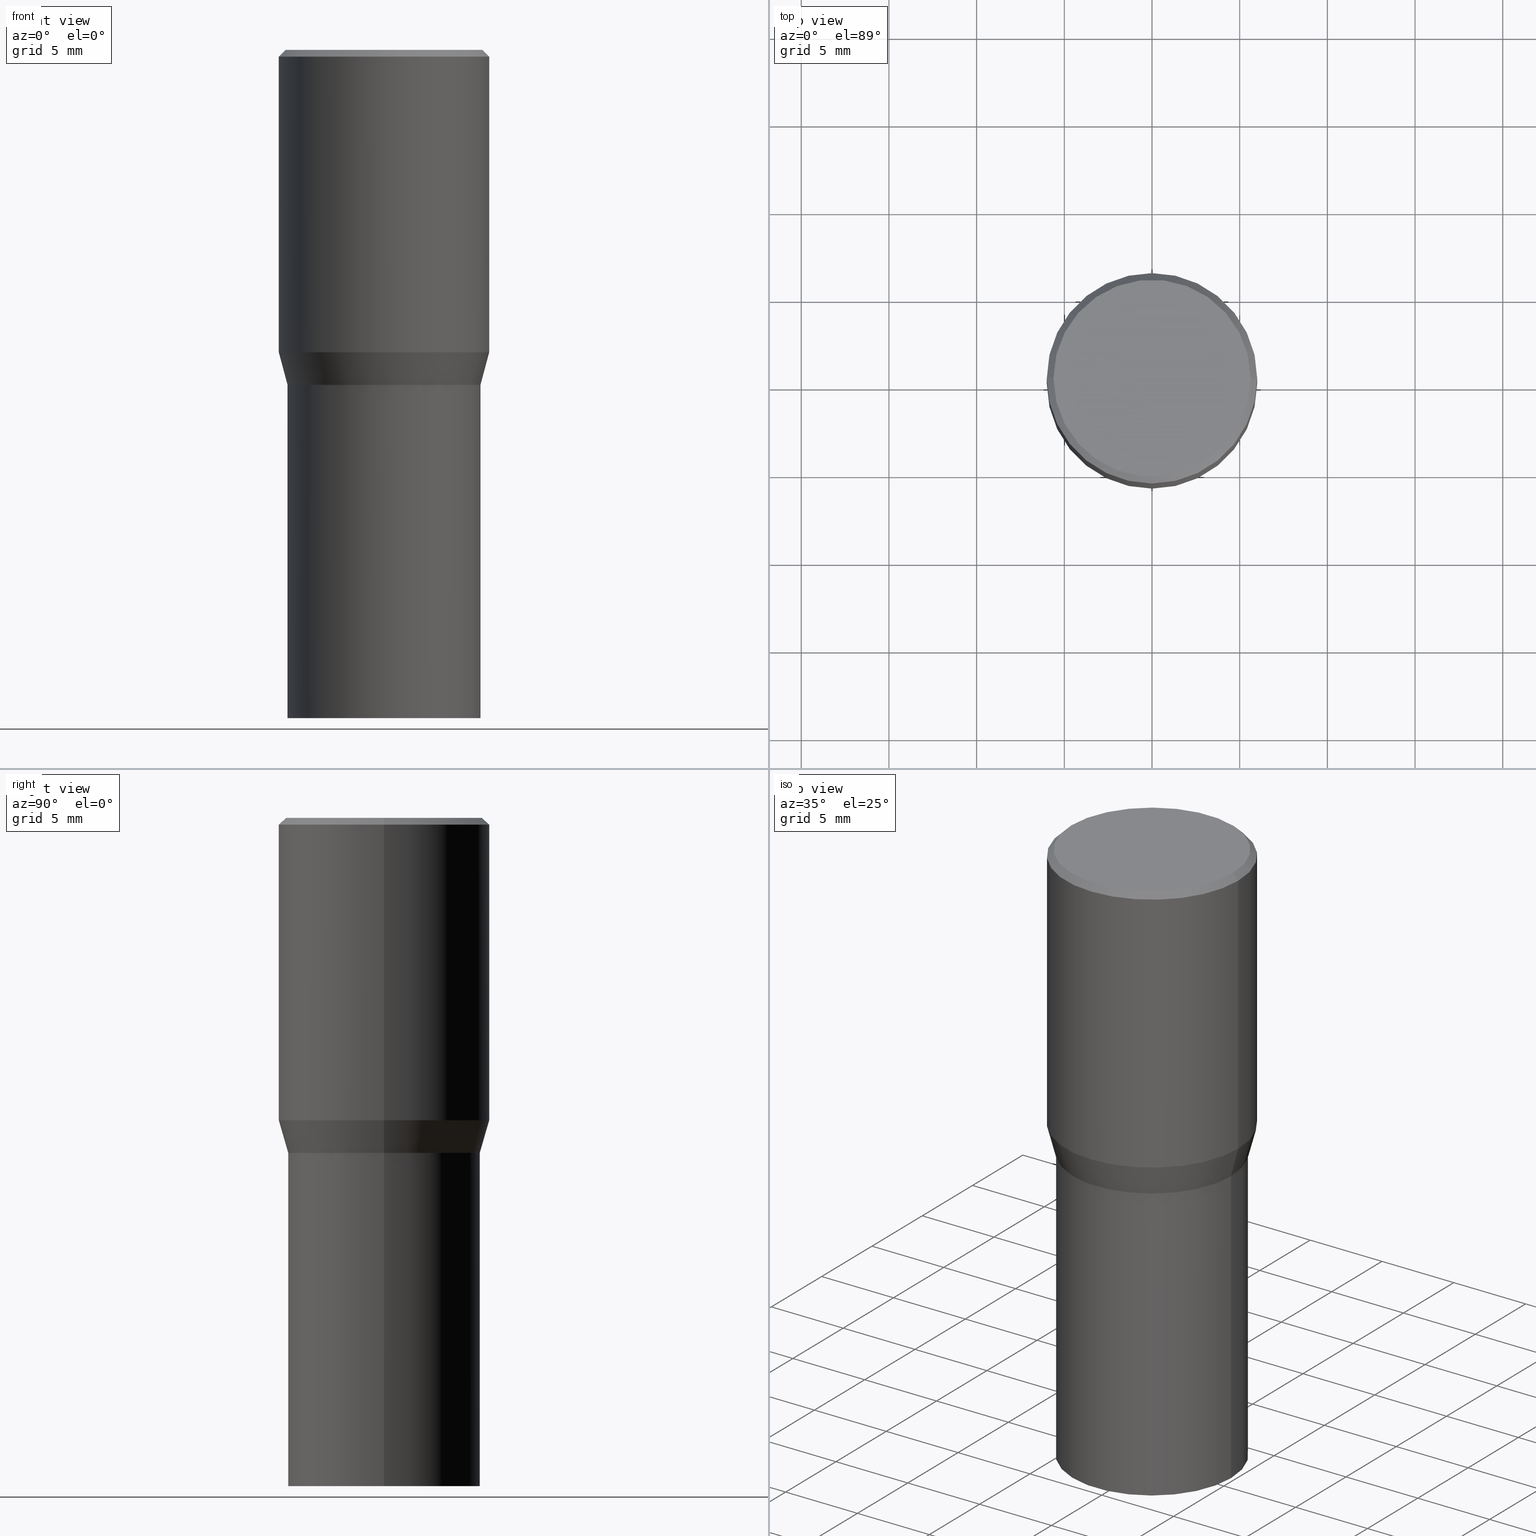
[diagram: canonical four-view strip — front | top / right | iso, engineering-drawing reading convention]
A machine part, canonical four-view strip (front | top / right | iso — engineering-drawing reading convention). The complete STEP part file that produces these views, byte-faithful:
ISO-10303-21;
HEADER;
FILE_DESCRIPTION (( 'STEP AP203' ),
    '1' );
FILE_NAME ('49171.STEP',
    '2024-03-12T20:01:16',
    ( '' ),
    ( '' ),
    'SwSTEP 2.0',
    'SolidWorks 2023',
    '' );
FILE_SCHEMA (( 'CONFIG_CONTROL_DESIGN' ));
ENDSEC;

DATA;
#1 = DIRECTION ( 'NONE',  ( 1.000000000000000000, -6.982962677686266711E-15, 0.000000000000000000 ) ) ;
#2 = DATE_AND_TIME ( #75, #427 ) ;
#3 = EDGE_CURVE ( 'NONE', #333, #403, #351, .T. ) ;
#4 = CARTESIAN_POINT ( 'NONE',  ( -0.2165500000000000203, -8.890793087369993447E-16, -0.7520000000000001128 ) ) ;
#5 = CARTESIAN_POINT ( 'NONE',  ( 0.000000000000000000, 0.000000000000000000, 0.000000000000000000 ) ) ;
#6 = DIRECTION ( 'NONE',  ( -2.445468806185136597E-29, 3.491481338843145583E-15, 1.000000000000000000 ) ) ;
#7 = CC_DESIGN_APPROVAL ( #282, ( #466 ) ) ;
#8 = DIRECTION ( 'NONE',  ( 2.445468806185136597E-29, -3.491481338843145583E-15, -1.000000000000000000 ) ) ;
#9 = DIRECTION ( 'NONE',  ( -1.000000000000000000, 6.982962677686266711E-15, 0.000000000000000000 ) ) ;
#10 = EDGE_LOOP ( 'NONE', ( #237, #407, #57, #299 ) ) ;
#11 = DIRECTION ( 'NONE',  ( 1.000000000000000000, -6.982962677686266711E-15, 4.876176775795935793E-29 ) ) ;
#12 = ORIENTED_EDGE ( 'NONE', *, *, #376, .T. ) ;
#13 = DIMENSIONAL_EXPONENTS ( 1.000000000000000000, 0.000000000000000000, 0.000000000000000000, 0.000000000000000000, 0.000000000000000000, 0.000000000000000000, 0.000000000000000000 ) ;
#14 = DESIGN_CONTEXT ( 'detailed design', #382, 'design' ) ;
#15 = PLANE ( 'NONE',  #60 ) ;
#16 = APPROVAL ( #61, 'UNSPECIFIED' ) ;
#17 = ORIENTED_EDGE ( 'NONE', *, *, #290, .F. ) ;
#18 = PLANE ( 'NONE',  #288 ) ;
#19 = EDGE_LOOP ( 'NONE', ( #90, #93, #414, #277 ) ) ;
#20 =( NAMED_UNIT ( * ) SI_UNIT ( $, .STERADIAN. ) SOLID_ANGLE_UNIT ( ) );
#21 = ORIENTED_EDGE ( 'NONE', *, *, #44, .T. ) ;
#22 = PLANE ( 'NONE',  #281 ) ;
#23 = VERTEX_POINT ( 'NONE', #409 ) ;
#24 = APPLICATION_PROTOCOL_DEFINITION ( 'international standard', 'config_control_design', 1994, #180 ) ;
#25 = VERTEX_POINT ( 'NONE', #410 ) ;
#26 = CALENDAR_DATE ( 2024, 12, 3 ) ;
#27 = ORIENTED_EDGE ( 'NONE', *, *, #223, .F. ) ;
#28 = AXIS2_PLACEMENT_3D ( 'NONE', #461, #104, #372 ) ;
#29 = LOCAL_TIME ( 16, 1, 16.00000000000000000, #307 ) ;
#30 = PERSON_AND_ORGANIZATION_ROLE ( 'design_supplier' ) ;
#31 = CARTESIAN_POINT ( 'NONE',  ( 1.659654580432621677E-29, -2.369546886817807077E-15, -0.6786652016312719748 ) ) ;
#32 = DIRECTION ( 'NONE',  ( -2.445468806185136877E-29, 3.491481338843145188E-15, 1.000000000000000000 ) ) ;
#33 = DIRECTION ( 'NONE',  ( -2.445468806185136597E-29, 3.491481338843145583E-15, 1.000000000000000000 ) ) ;
#34 = AXIS2_PLACEMENT_3D ( 'NONE', #353, #387, #313 ) ;
#35 = PRODUCT_DEFINITION ( 'UNKNOWN', '', #397, #14 ) ;
#36 = VECTOR ( 'NONE', #258, 39.37007874015748143 ) ;
#37 = CARTESIAN_POINT ( 'NONE',  ( 0.2361999999999999933, -1.649375784469496131E-15, 1.151752954443000088E-29 ) ) ;
#38 = DIRECTION ( 'NONE',  ( -2.445468806185136597E-29, 3.491481338843145583E-15, 1.000000000000000000 ) ) ;
#39 = APPROVAL_DATE_TIME ( #2, #282 ) ;
#40 = LINE ( 'NONE', #37, #412 ) ;
#41 = CONICAL_SURFACE ( 'NONE', #154, 0.2160500000000000198, 0.7853981633977554777 ) ;
#42 =( GEOMETRIC_REPRESENTATION_CONTEXT ( 3 ) GLOBAL_UNCERTAINTY_ASSIGNED_CONTEXT ( ( #354 ) ) GLOBAL_UNIT_ASSIGNED_CONTEXT ( ( #196, #266, #20 ) ) REPRESENTATION_CONTEXT ( 'NONE', 'WORKASPACE' ) );
#43 = CARTESIAN_POINT ( 'NONE',  ( 1.838992542251222532E-29, -2.625593966810045103E-15, -0.7519999999999998908 ) ) ;
#44 = EDGE_CURVE ( 'NONE', #233, #25, #309, .T. ) ;
#45 = FACE_OUTER_BOUND ( 'NONE', #230, .T. ) ;
#46 = EDGE_LOOP ( 'NONE', ( #396, #70 ) ) ;
#47 = DIRECTION ( 'NONE',  ( -2.445468806185136597E-29, 3.491481338843145583E-15, 1.000000000000000000 ) ) ;
#48 = EDGE_LOOP ( 'NONE', ( #161, #306, #121, #399 ) ) ;
#49 = CC_DESIGN_PERSON_AND_ORGANIZATION_ASSIGNMENT ( #137, #240, ( #466 ) ) ;
#50 = CARTESIAN_POINT ( 'NONE',  ( 1.838992542251222813E-29, -2.625593966810045497E-15, -0.7520000000000001128 ) ) ;
#51 = ORIENTED_EDGE ( 'NONE', *, *, #350, .F. ) ;
#52 = CARTESIAN_POINT ( 'NONE',  ( -0.2361999999999999933, 1.678301941865356591E-15, -1.161852468318208757E-29 ) ) ;
#53 = ORIENTED_EDGE ( 'NONE', *, *, #151, .T. ) ;
#54 = VERTEX_POINT ( 'NONE', #94 ) ;
#55 = ADVANCED_FACE ( 'NONE', ( #96 ), #168, .F. ) ;
#56 = DIRECTION ( 'NONE',  ( 0.000000000000000000, 0.000000000000000000, 1.000000000000000000 ) ) ;
#57 = ORIENTED_EDGE ( 'NONE', *, *, #216, .F. ) ;
#58 = EDGE_CURVE ( 'NONE', #338, #54, #274, .T. ) ;
#59 = CIRCLE ( 'NONE', #220, 0.2160500000000000198 ) ;
#60 = AXIS2_PLACEMENT_3D ( 'NONE', #50, #185, #253 ) ;
#61 = APPROVAL_STATUS ( 'not_yet_approved' ) ;
#62 = DIRECTION ( 'NONE',  ( -1.000000000000000000, 6.982962677686265922E-15, -4.876176775795935793E-29 ) ) ;
#63 = APPROVAL_ROLE ( '' ) ;
#64 = DIRECTION ( 'NONE',  ( 1.000000000000000000, -6.982962677686266711E-15, 0.000000000000000000 ) ) ;
#65 = PERSON_AND_ORGANIZATION_ROLE ( 'creator' ) ;
#66 = CC_DESIGN_PERSON_AND_ORGANIZATION_ASSIGNMENT ( #337, #165, ( #392 ) ) ;
#67 = DIRECTION ( 'NONE',  ( 1.000000000000000000, -6.982962677686267499E-15, 4.877828720335458505E-29 ) ) ;
#68 = CIRCLE ( 'NONE', #111, 0.2165500000000000203 ) ;
#69 = ADVANCED_FACE ( 'NONE', ( #303 ), #326, .T. ) ;
#70 = ORIENTED_EDGE ( 'NONE', *, *, #118, .T. ) ;
#71 = FACE_OUTER_BOUND ( 'NONE', #159, .T. ) ;
#72 = ADVANCED_FACE ( 'NONE', ( #381 ), #367, .T. ) ;
#73 = DIRECTION ( 'NONE',  ( 1.000000000000000000, -6.982962677686266711E-15, 4.876176775795935793E-29 ) ) ;
#74 = DIRECTION ( 'NONE',  ( 1.000000000000000000, -6.982962677686264344E-15, 0.000000000000000000 ) ) ;
#75 = CALENDAR_DATE ( 2024, 12, 3 ) ;
#76 = CARTESIAN_POINT ( 'NONE',  ( 0.2212000000000000077, -1.595182002131672613E-15, 4.701447564593453210E-17 ) ) ;
#77 = EDGE_CURVE ( 'NONE', #25, #54, #163, .T. ) ;
#78 = DIRECTION ( 'NONE',  ( 1.000000000000000000, -6.982962677686266711E-15, 0.000000000000000000 ) ) ;
#79 = CIRCLE ( 'NONE', #34, 0.2212000000000000077 ) ;
#80 = ORGANIZATION ( 'UNSPECIFIED', 'UNSPECIFIED', '' ) ;
#81 = CYLINDRICAL_SURFACE ( 'NONE', #91, 0.2361999999999999933 ) ;
#82 = ADVANCED_BREP_SHAPE_REPRESENTATION ( '49171', ( #459, #441, #184 ), #42 ) ;
#83 = ORIENTED_EDGE ( 'NONE', *, *, #77, .T. ) ;
#84 = CYLINDRICAL_SURFACE ( 'NONE', #244, 0.2165500000000000203 ) ;
#85 = ORIENTED_EDGE ( 'NONE', *, *, #128, .F. ) ;
#86 = EDGE_CURVE ( 'NONE', #100, #153, #133, .T. ) ;
#87 = DIRECTION ( 'NONE',  ( 1.000000000000000000, -6.982962677686266711E-15, 0.000000000000000000 ) ) ;
#88 = DIRECTION ( 'NONE',  ( 2.438088387897960049E-29, -3.491481338843145188E-15, -1.000000000000000000 ) ) ;
#89 = AXIS2_PLACEMENT_3D ( 'NONE', #132, #378, #102 ) ;
#90 = ORIENTED_EDGE ( 'NONE', *, *, #216, .T. ) ;
#91 = AXIS2_PLACEMENT_3D ( 'NONE', #432, #155, #328 ) ;
#92 = DIRECTION ( 'NONE',  ( 1.000000000000000000, -6.982962677686266711E-15, 0.000000000000000000 ) ) ;
#93 = ORIENTED_EDGE ( 'NONE', *, *, #384, .T. ) ;
#94 = CARTESIAN_POINT ( 'NONE',  ( 0.2165500000000002145, -4.136008793993586394E-15, -0.7515000000000000568 ) ) ;
#95 = APPLICATION_PROTOCOL_DEFINITION ( 'international standard', 'config_control_design', 1994, #382 ) ;
#96 = FACE_OUTER_BOUND ( 'NONE', #197, .T. ) ;
#97 = CIRCLE ( 'NONE', #320, 0.2160500000000000198 ) ;
#98 = VECTOR ( 'NONE', #192, 39.37007874015748143 ) ;
#99 = DATE_AND_TIME ( #26, #29 ) ;
#100 = VERTEX_POINT ( 'NONE', #310 ) ;
#101 = DATE_AND_TIME ( #415, #127 ) ;
#102 = DIRECTION ( 'NONE',  ( 1.000000000000000000, -6.982962677686266711E-15, 0.000000000000000000 ) ) ;
#103 = DIRECTION ( 'NONE',  ( -2.438088387897960049E-29, 3.491481338843145188E-15, 1.000000000000000000 ) ) ;
#104 = DIRECTION ( 'NONE',  ( -2.445468806185136597E-29, 3.491481338843145583E-15, 1.000000000000000000 ) ) ;
#105 = AXIS2_PLACEMENT_3D ( 'NONE', #264, #8, #9 ) ;
#106 = CONICAL_SURFACE ( 'NONE', #327, 0.2160500000000000198, 0.7853981633977554777 ) ;
#107 = DIRECTION ( 'NONE',  ( 0.7071067811865459074, -7.319954787623251312E-15, -0.7071067811865492381 ) ) ;
#108 = CARTESIAN_POINT ( 'NONE',  ( -0.2165500000000000203, -2.392727693248884740E-15, -0.7520000000000001128 ) ) ;
#109 = SHAPE_DEFINITION_REPRESENTATION ( #318, #82 ) ;
#110 = DIRECTION ( 'NONE',  ( 1.000000000000000000, -6.982962677686266711E-15, 0.000000000000000000 ) ) ;
#111 = AXIS2_PLACEMENT_3D ( 'NONE', #177, #464, #112 ) ;
#112 = DIRECTION ( 'NONE',  ( 1.000000000000000000, -6.982962677686266711E-15, 0.000000000000000000 ) ) ;
#113 = CC_DESIGN_DATE_AND_TIME_ASSIGNMENT ( #99, #236, ( #35 ) ) ;
#114 = LINE ( 'NONE', #251, #125 ) ;
#115 = DIRECTION ( 'NONE',  ( -2.445468806185136597E-29, 3.491481338843145583E-15, 1.000000000000000000 ) ) ;
#116 = ORIENTED_EDGE ( 'NONE', *, *, #118, .F. ) ;
#117 = CARTESIAN_POINT ( 'NONE',  ( 1.838992542251222813E-29, -2.625593966810045497E-15, -0.7520000000000001128 ) ) ;
#118 = EDGE_CURVE ( 'NONE', #138, #232, #373, .T. ) ;
#119 = ORIENTED_EDGE ( 'NONE', *, *, #167, .F. ) ;
#120 = FACE_OUTER_BOUND ( 'NONE', #257, .T. ) ;
#121 = ORIENTED_EDGE ( 'NONE', *, *, #58, .T. ) ;
#122 = CARTESIAN_POINT ( 'NONE',  ( 0.000000000000000000, 0.000000000000000000, 0.000000000000000000 ) ) ;
#123 = ORIENTED_EDGE ( 'NONE', *, *, #241, .T. ) ;
#124 = DIRECTION ( 'NONE',  ( -2.445468806185136597E-29, 3.491481338843145583E-15, 1.000000000000000000 ) ) ;
#125 = VECTOR ( 'NONE', #107, 39.37007874015748143 ) ;
#126 = VERTEX_POINT ( 'NONE', #207 ) ;
#127 = LOCAL_TIME ( 16, 1, 16.00000000000000000, #273 ) ;
#128 = EDGE_CURVE ( 'NONE', #126, #438, #345, .T. ) ;
#129 = ORIENTED_EDGE ( 'NONE', *, *, #267, .T. ) ;
#130 = ORIENTED_EDGE ( 'NONE', *, *, #362, .F. ) ;
#131 = DIRECTION ( 'NONE',  ( 1.000000000000000000, -6.982962677686265922E-15, 4.876176775795935793E-29 ) ) ;
#132 = CARTESIAN_POINT ( 'NONE',  ( 1.838992542251222813E-29, -2.625593966810045497E-15, -0.7520000000000001128 ) ) ;
#133 = CIRCLE ( 'NONE', #89, 0.2165500000000000203 ) ;
#134 = ADVANCED_FACE ( 'NONE', ( #286 ), #41, .T. ) ;
#135 = AXIS2_PLACEMENT_3D ( 'NONE', #321, #256, #92 ) ;
#136 = CARTESIAN_POINT ( 'NONE',  ( 1.512160567852979361E-15, 0.2165499999999973835, -0.7520000000000008900 ) ) ;
#137 = PERSON_AND_ORGANIZATION ( #434, #80 ) ;
#138 = VERTEX_POINT ( 'NONE', #76 ) ;
#139 = APPROVAL_ROLE ( '' ) ;
#140 = DIRECTION ( 'NONE',  ( 1.000000000000000000, -6.982962677686266711E-15, 4.876176775795935793E-29 ) ) ;
#141 = AXIS2_PLACEMENT_3D ( 'NONE', #356, #357, #1 ) ;
#142 = LOCAL_TIME ( 16, 1, 16.00000000000000000, #206 ) ;
#143 = EDGE_CURVE ( 'NONE', #23, #156, #183, .T. ) ;
#144 = CARTESIAN_POINT ( 'NONE',  ( 1.837769807848130011E-29, -2.623848226140623599E-15, -0.7515000000000000568 ) ) ;
#145 = LINE ( 'NONE', #250, #335 ) ;
#146 = DIRECTION ( 'NONE',  ( -2.445468806185136597E-29, 3.491481338843145583E-15, 1.000000000000000000 ) ) ;
#147 = AXIS2_PLACEMENT_3D ( 'NONE', #31, #462, #78 ) ;
#148 = CARTESIAN_POINT ( 'NONE',  ( 0.2165500000000000203, -6.749382576117678999E-15, -1.500000000000000222 ) ) ;
#149 = ADVANCED_FACE ( 'NONE', ( #212 ), #176, .T. ) ;
#150 = LINE ( 'NONE', #186, #419 ) ;
#151 = EDGE_CURVE ( 'NONE', #156, #23, #190, .T. ) ;
#152 = CARTESIAN_POINT ( 'NONE',  ( 0.2160500000000000198, -4.134263053324163313E-15, -0.7519999999999998908 ) ) ;
#153 = VERTEX_POINT ( 'NONE', #108 ) ;
#154 = AXIS2_PLACEMENT_3D ( 'NONE', #284, #6, #349 ) ;
#155 = DIRECTION ( 'NONE',  ( -2.445468806185136597E-29, 3.491481338843145583E-15, 1.000000000000000000 ) ) ;
#156 = VERTEX_POINT ( 'NONE', #148 ) ;
#157 = EDGE_CURVE ( 'NONE', #438, #333, #40, .T. ) ;
#158 = CARTESIAN_POINT ( 'NONE',  ( 0.2160500000000000198, -4.134263053324163313E-15, -0.7519999999999998908 ) ) ;
#159 = EDGE_LOOP ( 'NONE', ( #130, #21, #83, #366 ) ) ;
#160 = CARTESIAN_POINT ( 'NONE',  ( 1.544631344304202170E-15, 0.2212000000000000077, -7.488084343291421542E-16 ) ) ;
#161 = ORIENTED_EDGE ( 'NONE', *, *, #44, .F. ) ;
#162 = EDGE_CURVE ( 'NONE', #348, #361, #59, .T. ) ;
#163 = CIRCLE ( 'NONE', #228, 0.2165500000000002145 ) ;
#164 = ORIENTED_EDGE ( 'NONE', *, *, #223, .T. ) ;
#165 = PERSON_AND_ORGANIZATION_ROLE ( 'design_owner' ) ;
#166 = EDGE_LOOP ( 'NONE', ( #235, #268 ) ) ;
#167 = EDGE_CURVE ( 'NONE', #23, #153, #319, .T. ) ;
#168 = PLANE ( 'NONE',  #242 ) ;
#169 = DIRECTION ( 'NONE',  ( -2.445468806185136597E-29, 3.491481338843145583E-15, 1.000000000000000000 ) ) ;
#170 = CARTESIAN_POINT ( 'NONE',  ( 3.668203209277705088E-31, -5.237222008264718399E-17, -0.01499999999999999944 ) ) ;
#171 = SECURITY_CLASSIFICATION_LEVEL ( 'unclassified' ) ;
#172 = EDGE_LOOP ( 'NONE', ( #297, #193, #301, #51 ) ) ;
#173 = CARTESIAN_POINT ( 'NONE',  ( -0.2165500000000000203, 1.538680294288497096E-15, -1.065195393794699923E-29 ) ) ;
#174 = CC_DESIGN_PERSON_AND_ORGANIZATION_ASSIGNMENT ( #341, #413, ( #35 ) ) ;
#175 = DIRECTION ( 'NONE',  ( 1.000000000000000000, -6.982962677686266711E-15, 0.000000000000000000 ) ) ;
#176 = CONICAL_SURFACE ( 'NONE', #141, 0.2165500000000000203, 0.2617993877991505736 ) ;
#177 = CARTESIAN_POINT ( 'NONE',  ( 1.838992542251222813E-29, -2.625593966810045497E-15, -0.7520000000000001128 ) ) ;
#178 = CC_DESIGN_PERSON_AND_ORGANIZATION_ASSIGNMENT ( #344, #30, ( #397 ) ) ;
#179 = DIRECTION ( 'NONE',  ( 1.000000000000000000, -6.982962677686266711E-15, 0.000000000000000000 ) ) ;
#180 = APPLICATION_CONTEXT ( 'configuration controlled 3d designs of mechanical parts and assemblies' ) ;
#181 = EDGE_CURVE ( 'NONE', #54, #25, #437, .T. ) ;
#182 = DIRECTION ( 'NONE',  ( -2.445468806185136597E-29, 3.491481338843145583E-15, 1.000000000000000000 ) ) ;
#183 = CIRCLE ( 'NONE', #262, 0.2165500000000000203 ) ;
#184 = AXIS2_PLACEMENT_3D ( 'NONE', #276, #56, #332 ) ;
#185 = DIRECTION ( 'NONE',  ( -2.438088387897960049E-29, 3.491481338843145188E-15, 1.000000000000000000 ) ) ;
#186 = CARTESIAN_POINT ( 'NONE',  ( -0.2160500000000000198, -1.090466386200348708E-15, -0.7519999999999998908 ) ) ;
#187 = ORIENTED_EDGE ( 'NONE', *, *, #362, .T. ) ;
#188 = CARTESIAN_POINT ( 'NONE',  ( 0.000000000000000000, 0.000000000000000000, 0.000000000000000000 ) ) ;
#189 = ORIENTED_EDGE ( 'NONE', *, *, #350, .T. ) ;
#190 = CIRCLE ( 'NONE', #404, 0.2165500000000000203 ) ;
#191 = AXIS2_PLACEMENT_3D ( 'NONE', #368, #194, #330 ) ;
#192 = DIRECTION ( 'NONE',  ( -0.2588190451025218497, 5.211531920934553408E-15, 0.9659258262890679791 ) ) ;
#193 = ORIENTED_EDGE ( 'NONE', *, *, #386, .T. ) ;
#194 = DIRECTION ( 'NONE',  ( -2.445468806185136597E-29, 3.491481338843145583E-15, 1.000000000000000000 ) ) ;
#195 = EDGE_LOOP ( 'NONE', ( #119, #272, #129, #27 ) ) ;
#196 =( CONVERSION_BASED_UNIT ( 'INCH', #408 ) LENGTH_UNIT ( ) NAMED_UNIT ( #13 ) );
#197 = EDGE_LOOP ( 'NONE', ( #259, #164 ) ) ;
#198 = CLOSED_SHELL ( 'NONE', ( #252, #134, #69, #334, #149, #72, #452, #312, #355, #420, #391, #203 ) ) ;
#199 = APPROVAL_PERSON_ORGANIZATION ( #460, #431, #63 ) ;
#200 = CARTESIAN_POINT ( 'NONE',  ( 1.837769807848130011E-29, -2.623848226140623599E-15, -0.7515000000000000568 ) ) ;
#201 = CALENDAR_DATE ( 2024, 12, 3 ) ;
#202 = ORIENTED_EDGE ( 'NONE', *, *, #77, .F. ) ;
#203 = ADVANCED_FACE ( 'NONE', ( #423 ), #311, .F. ) ;
#204 = CARTESIAN_POINT ( 'NONE',  ( 3.576687321579069994E-29, -5.368277968210015545E-15, -1.500000000000000222 ) ) ;
#205 = DIRECTION ( 'NONE',  ( -2.445468806185136877E-29, 3.491481338843145188E-15, 1.000000000000000000 ) ) ;
#206 = COORDINATED_UNIVERSAL_TIME_OFFSET ( 5, 0, .BEHIND. ) ;
#207 = CARTESIAN_POINT ( 'NONE',  ( -0.2361999999999999933, -6.912449449524502887E-16, -0.6786652016312719748 ) ) ;
#208 = AXIS2_PLACEMENT_3D ( 'NONE', #246, #214, #179 ) ;
#209 = CIRCLE ( 'NONE', #390, 0.2165500000000000203 ) ;
#210 = CARTESIAN_POINT ( 'NONE',  ( -0.2165500000000001035, 1.538680294288497688E-15, -1.065195393794700483E-29 ) ) ;
#211 = EDGE_CURVE ( 'NONE', #232, #138, #79, .T. ) ;
#212 = FACE_OUTER_BOUND ( 'NONE', #10, .T. ) ;
#213 = COORDINATED_UNIVERSAL_TIME_OFFSET ( 5, 0, .BEHIND. ) ;
#214 = DIRECTION ( 'NONE',  ( -2.445468806185136597E-29, 3.491481338843145583E-15, 1.000000000000000000 ) ) ;
#215 = AXIS2_PLACEMENT_3D ( 'NONE', #144, #38, #110 ) ;
#216 = EDGE_CURVE ( 'NONE', #438, #126, #308, .T. ) ;
#217 = DIRECTION ( 'NONE',  ( -2.445468806185136877E-29, 3.491481338843145188E-15, 1.000000000000000000 ) ) ;
#218 = CARTESIAN_POINT ( 'NONE',  ( 1.838992542251222532E-29, -2.625593966810045103E-15, -0.7519999999999998908 ) ) ;
#219 = DIRECTION ( 'NONE',  ( -2.445468806185136597E-29, 3.491481338843145583E-15, 1.000000000000000000 ) ) ;
#220 = AXIS2_PLACEMENT_3D ( 'NONE', #385, #389, #175 ) ;
#221 = CIRCLE ( 'NONE', #302, 0.2361999999999999933 ) ;
#222 = LINE ( 'NONE', #300, #346 ) ;
#223 = EDGE_CURVE ( 'NONE', #153, #100, #68, .T. ) ;
#224 = DIRECTION ( 'NONE',  ( 1.000000000000000000, -6.982962677686266711E-15, 0.000000000000000000 ) ) ;
#225 = ORIENTED_EDGE ( 'NONE', *, *, #290, .T. ) ;
#226 = CARTESIAN_POINT ( 'NONE',  ( -0.2361999999999999933, 4.673423884151294145E-16, -0.01499999999999999944 ) ) ;
#227 = ORIENTED_EDGE ( 'NONE', *, *, #162, .F. ) ;
#228 = AXIS2_PLACEMENT_3D ( 'NONE', #200, #416, #243 ) ;
#229 = CYLINDRICAL_SURFACE ( 'NONE', #191, 0.2361999999999999933 ) ;
#230 = EDGE_LOOP ( 'NONE', ( #227, #17 ) ) ;
#231 = CARTESIAN_POINT ( 'NONE',  ( -0.2160500000000000198, -1.087817159026237112E-15, -0.7519999999999998908 ) ) ;
#232 = VERTEX_POINT ( 'NONE', #316 ) ;
#233 = VERTEX_POINT ( 'NONE', #4 ) ;
#234 = AXIS2_PLACEMENT_3D ( 'NONE', #283, #219, #73 ) ;
#235 = ORIENTED_EDGE ( 'NONE', *, *, #151, .F. ) ;
#236 = DATE_TIME_ROLE ( 'creation_date' ) ;
#237 = ORIENTED_EDGE ( 'NONE', *, *, #342, .T. ) ;
#238 = APPROVAL_DATE_TIME ( #101, #431 ) ;
#239 = CARTESIAN_POINT ( 'NONE',  ( -1.149724336312568549E-45, 1.641501643732376111E-31, 4.701447564592355584E-17 ) ) ;
#240 = PERSON_AND_ORGANIZATION_ROLE ( 'classification_officer' ) ;
#241 = EDGE_CURVE ( 'NONE', #338, #438, #145, .T. ) ;
#242 = AXIS2_PLACEMENT_3D ( 'NONE', #136, #418, #62 ) ;
#243 = DIRECTION ( 'NONE',  ( 1.000000000000000000, -6.982962677686266711E-15, 0.000000000000000000 ) ) ;
#244 = AXIS2_PLACEMENT_3D ( 'NONE', #188, #324, #11 ) ;
#245 = DIRECTION ( 'NONE',  ( -2.445468806185136597E-29, 3.491481338843145583E-15, 1.000000000000000000 ) ) ;
#246 = CARTESIAN_POINT ( 'NONE',  ( 1.659654580432621677E-29, -2.369546886817807077E-15, -0.6786652016312719748 ) ) ;
#247 = DIRECTION ( 'NONE',  ( 1.000000000000000000, -6.982962677686264344E-15, 0.000000000000000000 ) ) ;
#248 = VECTOR ( 'NONE', #217, 39.37007874015748143 ) ;
#249 = LOCAL_TIME ( 16, 1, 16.00000000000000000, #315 ) ;
#250 = CARTESIAN_POINT ( 'NONE',  ( 0.2165500000000000203, -4.137754534663007109E-15, -0.7520000000000001128 ) ) ;
#251 = CARTESIAN_POINT ( 'NONE',  ( 0.2361999999999999933, -1.672821847156282947E-15, -0.01499999999999999944 ) ) ;
#252 = ADVANCED_FACE ( 'NONE', ( #71 ), #317, .F. ) ;
#253 = DIRECTION ( 'NONE',  ( 1.000000000000000000, -6.982962677686265922E-15, 4.876176775795935793E-29 ) ) ;
#254 = EDGE_LOOP ( 'NONE', ( #331, #304, #453, #325 ) ) ;
#255 = CONICAL_SURFACE ( 'NONE', #105, 0.2361999999999999933, 0.7853981633974459475 ) ;
#256 = DIRECTION ( 'NONE',  ( -2.445468806185136597E-29, 3.491481338843145583E-15, 1.000000000000000000 ) ) ;
#257 = EDGE_LOOP ( 'NONE', ( #53, #329, #293, #261 ) ) ;
#258 = DIRECTION ( 'NONE',  ( 0.7071067811867647324, -2.468850131084532135E-15, 0.7071067811863303021 ) ) ;
#259 = ORIENTED_EDGE ( 'NONE', *, *, #86, .T. ) ;
#260 = DIRECTION ( 'NONE',  ( 1.000000000000000000, -6.982962677686266711E-15, 4.876176775795935793E-29 ) ) ;
#261 = ORIENTED_EDGE ( 'NONE', *, *, #267, .F. ) ;
#262 = AXIS2_PLACEMENT_3D ( 'NONE', #352, #245, #247 ) ;
#263 = VECTOR ( 'NONE', #421, 39.37007874015748143 ) ;
#264 = CARTESIAN_POINT ( 'NONE',  ( 3.668203209277705088E-31, -5.237222008264718399E-17, -0.01499999999999999944 ) ) ;
#265 = ORIENTED_EDGE ( 'NONE', *, *, #386, .F. ) ;
#266 =( NAMED_UNIT ( * ) PLANE_ANGLE_UNIT ( ) SI_UNIT ( $, .RADIAN. ) );
#267 = EDGE_CURVE ( 'NONE', #156, #100, #280, .T. ) ;
#268 = ORIENTED_EDGE ( 'NONE', *, *, #143, .F. ) ;
#269 = DIRECTION ( 'NONE',  ( -2.445468806185136597E-29, 3.491481338843145583E-15, 1.000000000000000000 ) ) ;
#270 = MECHANICAL_CONTEXT ( 'NONE', #180, 'mechanical' ) ;
#271 = CIRCLE ( 'NONE', #135, 0.2165500000000000203 ) ;
#272 = ORIENTED_EDGE ( 'NONE', *, *, #143, .T. ) ;
#273 = COORDINATED_UNIVERSAL_TIME_OFFSET ( 5, 0, .BEHIND. ) ;
#274 = LINE ( 'NONE', #340, #447 ) ;
#275 = PRODUCT_RELATED_PRODUCT_CATEGORY ( 'detail', '', ( #392 ) ) ;
#276 = CARTESIAN_POINT ( 'NONE',  ( 0.000000000000000000, 0.000000000000000000, 0.000000000000000000 ) ) ;
#277 = ORIENTED_EDGE ( 'NONE', *, *, #157, .F. ) ;
#278 = CALENDAR_DATE ( 2024, 12, 3 ) ;
#279 = AXIS2_PLACEMENT_3D ( 'NONE', #450, #343, #456 ) ;
#280 = LINE ( 'NONE', #393, #263 ) ;
#281 = AXIS2_PLACEMENT_3D ( 'NONE', #204, #103, #131 ) ;
#282 = APPROVAL ( #425, 'UNSPECIFIED' ) ;
#283 = CARTESIAN_POINT ( 'NONE',  ( 0.000000000000000000, 0.000000000000000000, 0.000000000000000000 ) ) ;
#284 = CARTESIAN_POINT ( 'NONE',  ( 1.838992542251222532E-29, -2.625593966810045103E-15, -0.7519999999999998908 ) ) ;
#285 = DATE_TIME_ROLE ( 'classification_date' ) ;
#286 = FACE_OUTER_BOUND ( 'NONE', #172, .T. ) ;
#287 = CLOSED_SHELL ( 'NONE', ( #444, #454, #428, #55 ) ) ;
#288 = AXIS2_PLACEMENT_3D ( 'NONE', #160, #88, #292 ) ;
#289 = DIRECTION ( 'NONE',  ( 0.2588190451025218497, 1.565188264969618221E-15, 0.9659258262890679791 ) ) ;
#290 = EDGE_CURVE ( 'NONE', #361, #348, #97, .T. ) ;
#291 = CARTESIAN_POINT ( 'NONE',  ( 0.2165500000000000203, -4.137754534663007109E-15, -0.7520000000000001128 ) ) ;
#292 = DIRECTION ( 'NONE',  ( -1.000000000000000000, 6.982962677686265922E-15, -4.876176775795935793E-29 ) ) ;
#293 = ORIENTED_EDGE ( 'NONE', *, *, #86, .F. ) ;
#294 = VECTOR ( 'NONE', #398, 39.37007874015748143 ) ;
#295 = LINE ( 'NONE', #439, #98 ) ;
#296 = EDGE_CURVE ( 'NONE', #138, #333, #114, .T. ) ;
#297 = ORIENTED_EDGE ( 'NONE', *, *, #162, .T. ) ;
#298 = LINE ( 'NONE', #52, #294 ) ;
#299 = ORIENTED_EDGE ( 'NONE', *, *, #241, .F. ) ;
#300 = CARTESIAN_POINT ( 'NONE',  ( -0.2361999999999999933, 1.597003564386848854E-15, -0.01499999999999999944 ) ) ;
#301 = ORIENTED_EDGE ( 'NONE', *, *, #181, .F. ) ;
#302 = AXIS2_PLACEMENT_3D ( 'NONE', #449, #169, #370 ) ;
#303 = FACE_OUTER_BOUND ( 'NONE', #433, .T. ) ;
#304 = ORIENTED_EDGE ( 'NONE', *, *, #128, .T. ) ;
#305 = APPROVAL_ROLE ( '' ) ;
#306 = ORIENTED_EDGE ( 'NONE', *, *, #342, .F. ) ;
#307 = COORDINATED_UNIVERSAL_TIME_OFFSET ( 5, 0, .BEHIND. ) ;
#308 = CIRCLE ( 'NONE', #208, 0.2361999999999999933 ) ;
#309 = LINE ( 'NONE', #210, #358 ) ;
#310 = CARTESIAN_POINT ( 'NONE',  ( 0.2165500000000000203, -4.137754534663007109E-15, -0.7520000000000001128 ) ) ;
#311 = CYLINDRICAL_SURFACE ( 'NONE', #234, 0.2165500000000001035 ) ;
#312 = ADVANCED_FACE ( 'NONE', ( #394 ), #255, .T. ) ;
#313 = DIRECTION ( 'NONE',  ( 1.000000000000000000, -6.982962677686267499E-15, 4.877828720335458505E-29 ) ) ;
#314 = CC_DESIGN_SECURITY_CLASSIFICATION ( #466, ( #397 ) ) ;
#315 = COORDINATED_UNIVERSAL_TIME_OFFSET ( 5, 0, .BEHIND. ) ;
#316 = CARTESIAN_POINT ( 'NONE',  ( -0.2212000000000000077, 1.570817454345525709E-15, 4.701447564591265970E-17 ) ) ;
#317 = CYLINDRICAL_SURFACE ( 'NONE', #465, 0.2165500000000001035 ) ;
#318 = PRODUCT_DEFINITION_SHAPE ( 'NONE', 'NONE',  #35 ) ;
#319 = LINE ( 'NONE', #173, #248 ) ;
#320 = AXIS2_PLACEMENT_3D ( 'NONE', #218, #182, #430 ) ;
#321 = CARTESIAN_POINT ( 'NONE',  ( 1.838992542251222813E-29, -2.625593966810045497E-15, -0.7520000000000001128 ) ) ;
#322 = FACE_OUTER_BOUND ( 'NONE', #195, .T. ) ;
#323 = ORIENTED_EDGE ( 'NONE', *, *, #463, .T. ) ;
#324 = DIRECTION ( 'NONE',  ( -2.445468806185136597E-29, 3.491481338843145583E-15, 1.000000000000000000 ) ) ;
#325 = ORIENTED_EDGE ( 'NONE', *, *, #463, .F. ) ;
#326 = CONICAL_SURFACE ( 'NONE', #279, 0.2361999999999999933, 0.7853981633974459475 ) ;
#327 = AXIS2_PLACEMENT_3D ( 'NONE', #43, #47, #87 ) ;
#328 = DIRECTION ( 'NONE',  ( 1.000000000000000000, -6.982962677686266711E-15, 4.876176775795936353E-29 ) ) ;
#329 = ORIENTED_EDGE ( 'NONE', *, *, #167, .T. ) ;
#330 = DIRECTION ( 'NONE',  ( 1.000000000000000000, -6.982962677686266711E-15, 4.876176775795936353E-29 ) ) ;
#331 = ORIENTED_EDGE ( 'NONE', *, *, #384, .F. ) ;
#332 = DIRECTION ( 'NONE',  ( 1.000000000000000000, 0.000000000000000000, 0.000000000000000000 ) ) ;
#333 = VERTEX_POINT ( 'NONE', #406 ) ;
#334 = ADVANCED_FACE ( 'NONE', ( #363 ), #81, .T. ) ;
#335 = VECTOR ( 'NONE', #289, 39.37007874015748143 ) ;
#336 = APPROVAL_PERSON_ORGANIZATION ( #374, #16, #305 ) ;
#337 = PERSON_AND_ORGANIZATION ( #434, #80 ) ;
#338 = VERTEX_POINT ( 'NONE', #291 ) ;
#339 = APPROVAL_DATE_TIME ( #455, #16 ) ;
#340 = CARTESIAN_POINT ( 'NONE',  ( 0.2165500000000001035, -1.512160567852961809E-15, 1.055936080798610456E-29 ) ) ;
#341 = PERSON_AND_ORGANIZATION ( #434, #80 ) ;
#342 = EDGE_CURVE ( 'NONE', #338, #233, #271, .T. ) ;
#343 = DIRECTION ( 'NONE',  ( 2.445468806185136597E-29, -3.491481338843145583E-15, -1.000000000000000000 ) ) ;
#344 = PERSON_AND_ORGANIZATION ( #434, #80 ) ;
#345 = CIRCLE ( 'NONE', #147, 0.2361999999999999933 ) ;
#346 = VECTOR ( 'NONE', #436, 39.37007874015748143 ) ;
#347 = EDGE_LOOP ( 'NONE', ( #364, #401, #12, #323 ) ) ;
#348 = VERTEX_POINT ( 'NONE', #158 ) ;
#349 = DIRECTION ( 'NONE',  ( 1.000000000000000000, -6.982962677686266711E-15, 0.000000000000000000 ) ) ;
#350 = EDGE_CURVE ( 'NONE', #348, #54, #365, .T. ) ;
#351 = CIRCLE ( 'NONE', #457, 0.2361999999999999933 ) ;
#352 = CARTESIAN_POINT ( 'NONE',  ( 3.668203209277704895E-29, -5.237222008264718177E-15, -1.500000000000000222 ) ) ;
#353 = CARTESIAN_POINT ( 'NONE',  ( -1.149724336312568549E-45, 1.641501643732376111E-31, 4.701447564592355584E-17 ) ) ;
#354 = UNCERTAINTY_MEASURE_WITH_UNIT (LENGTH_MEASURE( 1.000000000000000082E-05 ), #196, 'distance_accuracy_value', 'NONE');
#355 = ADVANCED_FACE ( 'NONE', ( #395 ), #18, .F. ) ;
#356 = CARTESIAN_POINT ( 'NONE',  ( 1.838992542251222813E-29, -2.625593966810045497E-15, -0.7520000000000001128 ) ) ;
#357 = DIRECTION ( 'NONE',  ( -2.445468806185136597E-29, 3.491481338843145583E-15, 1.000000000000000000 ) ) ;
#358 = VECTOR ( 'NONE', #32, 39.37007874015748143 ) ;
#359 = AXIS2_PLACEMENT_3D ( 'NONE', #122, #124, #260 ) ;
#360 = DIRECTION ( 'NONE',  ( -0.7071067811867647324, 7.493145998871139866E-15, 0.7071067811863303021 ) ) ;
#361 = VERTEX_POINT ( 'NONE', #231 ) ;
#362 = EDGE_CURVE ( 'NONE', #233, #338, #209, .T. ) ;
#363 = FACE_OUTER_BOUND ( 'NONE', #19, .T. ) ;
#364 = ORIENTED_EDGE ( 'NONE', *, *, #296, .F. ) ;
#365 = LINE ( 'NONE', #152, #36 ) ;
#366 = ORIENTED_EDGE ( 'NONE', *, *, #58, .F. ) ;
#367 = CONICAL_SURFACE ( 'NONE', #28, 0.2165500000000000203, 0.2617993877991505736 ) ;
#368 = CARTESIAN_POINT ( 'NONE',  ( 0.000000000000000000, 0.000000000000000000, 0.000000000000000000 ) ) ;
#369 = EDGE_LOOP ( 'NONE', ( #371, #187, #123, #85 ) ) ;
#370 = DIRECTION ( 'NONE',  ( 1.000000000000000000, -6.982962677686266711E-15, 0.000000000000000000 ) ) ;
#371 = ORIENTED_EDGE ( 'NONE', *, *, #435, .F. ) ;
#372 = DIRECTION ( 'NONE',  ( 1.000000000000000000, -6.982962677686266711E-15, 0.000000000000000000 ) ) ;
#373 = CIRCLE ( 'NONE', #388, 0.2212000000000000077 ) ;
#374 = PERSON_AND_ORGANIZATION ( #434, #80 ) ;
#375 = EDGE_LOOP ( 'NONE', ( #265, #225, #189, #202 ) ) ;
#376 = EDGE_CURVE ( 'NONE', #232, #403, #222, .T. ) ;
#377 = APPROVAL_STATUS ( 'not_yet_approved' ) ;
#378 = DIRECTION ( 'NONE',  ( -2.445468806185136597E-29, 3.491481338843145583E-15, 1.000000000000000000 ) ) ;
#379 = PERSON_AND_ORGANIZATION ( #434, #80 ) ;
#380 = DIRECTION ( 'NONE',  ( -2.445468806185136597E-29, 3.491481338843145583E-15, 1.000000000000000000 ) ) ;
#381 = FACE_OUTER_BOUND ( 'NONE', #369, .T. ) ;
#382 = APPLICATION_CONTEXT ( 'configuration controlled 3d designs of mechanical parts and assemblies' ) ;
#383 = PERSON_AND_ORGANIZATION ( #434, #80 ) ;
#384 = EDGE_CURVE ( 'NONE', #126, #403, #298, .T. ) ;
#385 = CARTESIAN_POINT ( 'NONE',  ( 1.838992542251222532E-29, -2.625593966810045103E-15, -0.7519999999999998908 ) ) ;
#386 = EDGE_CURVE ( 'NONE', #361, #25, #150, .T. ) ;
#387 = DIRECTION ( 'NONE',  ( -2.445468806185136597E-29, 3.491481338843145583E-15, 1.000000000000000000 ) ) ;
#388 = AXIS2_PLACEMENT_3D ( 'NONE', #239, #380, #67 ) ;
#389 = DIRECTION ( 'NONE',  ( -2.445468806185136597E-29, 3.491481338843145583E-15, 1.000000000000000000 ) ) ;
#390 = AXIS2_PLACEMENT_3D ( 'NONE', #117, #115, #224 ) ;
#391 = ADVANCED_FACE ( 'NONE', ( #400 ), #106, .T. ) ;
#392 = PRODUCT ( '49171', '49171', '', ( #270 ) ) ;
#393 = CARTESIAN_POINT ( 'NONE',  ( 0.2165500000000000203, -1.512160567852961217E-15, 1.055936080798610036E-29 ) ) ;
#394 = FACE_OUTER_BOUND ( 'NONE', #347, .T. ) ;
#395 = FACE_OUTER_BOUND ( 'NONE', #46, .T. ) ;
#396 = ORIENTED_EDGE ( 'NONE', *, *, #211, .T. ) ;
#397 = PRODUCT_DEFINITION_FORMATION_WITH_SPECIFIED_SOURCE ( 'ANY', '', #392, .NOT_KNOWN. ) ;
#398 = DIRECTION ( 'NONE',  ( -2.445468806185136877E-29, 3.491481338843145188E-15, 1.000000000000000000 ) ) ;
#399 = ORIENTED_EDGE ( 'NONE', *, *, #181, .T. ) ;
#400 = FACE_OUTER_BOUND ( 'NONE', #375, .T. ) ;
#401 = ORIENTED_EDGE ( 'NONE', *, *, #211, .F. ) ;
#402 = FACE_OUTER_BOUND ( 'NONE', #254, .T. ) ;
#403 = VERTEX_POINT ( 'NONE', #226 ) ;
#404 = AXIS2_PLACEMENT_3D ( 'NONE', #422, #33, #74 ) ;
#405 = APPROVAL_PERSON_ORGANIZATION ( #383, #282, #139 ) ;
#406 = CARTESIAN_POINT ( 'NONE',  ( 0.2361999999999999933, -1.701748004552143407E-15, -0.01499999999999999944 ) ) ;
#407 = ORIENTED_EDGE ( 'NONE', *, *, #435, .T. ) ;
#408 = LENGTH_MEASURE_WITH_UNIT ( LENGTH_MEASURE( 0.02539999999999999897 ), #451 );
#409 = CARTESIAN_POINT ( 'NONE',  ( -0.2165500000000000203, -2.392727693248884740E-15, -1.500000000000000222 ) ) ;
#410 = CARTESIAN_POINT ( 'NONE',  ( -0.2165500000000002145, -1.085167931852125319E-15, -0.7515000000000000568 ) ) ;
#411 = CC_DESIGN_DATE_AND_TIME_ASSIGNMENT ( #429, #285, ( #466 ) ) ;
#412 = VECTOR ( 'NONE', #426, 39.37007874015748143 ) ;
#413 = PERSON_AND_ORGANIZATION_ROLE ( 'creator' ) ;
#414 = ORIENTED_EDGE ( 'NONE', *, *, #3, .F. ) ;
#415 = CALENDAR_DATE ( 2024, 12, 3 ) ;
#416 = DIRECTION ( 'NONE',  ( -2.445468806185136597E-29, 3.491481338843145583E-15, 1.000000000000000000 ) ) ;
#417 = FACE_OUTER_BOUND ( 'NONE', #166, .T. ) ;
#418 = DIRECTION ( 'NONE',  ( 2.438088387897960049E-29, -3.491481338843145188E-15, -1.000000000000000000 ) ) ;
#419 = VECTOR ( 'NONE', #360, 39.37007874015748143 ) ;
#420 = ADVANCED_FACE ( 'NONE', ( #45 ), #15, .F. ) ;
#421 = DIRECTION ( 'NONE',  ( -2.445468806185136877E-29, 3.491481338843145188E-15, 1.000000000000000000 ) ) ;
#422 = CARTESIAN_POINT ( 'NONE',  ( 3.668203209277704895E-29, -5.237222008264718177E-15, -1.500000000000000222 ) ) ;
#423 = FACE_OUTER_BOUND ( 'NONE', #48, .T. ) ;
#424 = CC_DESIGN_PERSON_AND_ORGANIZATION_ASSIGNMENT ( #379, #65, ( #397 ) ) ;
#425 = APPROVAL_STATUS ( 'not_yet_approved' ) ;
#426 = DIRECTION ( 'NONE',  ( -2.445468806185136877E-29, 3.491481338843145188E-15, 1.000000000000000000 ) ) ;
#427 = LOCAL_TIME ( 16, 1, 16.00000000000000000, #213 ) ;
#428 = ADVANCED_FACE ( 'NONE', ( #322 ), #84, .T. ) ;
#429 = DATE_AND_TIME ( #278, #249 ) ;
#430 = DIRECTION ( 'NONE',  ( 1.000000000000000000, -6.982962677686266711E-15, 0.000000000000000000 ) ) ;
#431 = APPROVAL ( #377, 'UNSPECIFIED' ) ;
#432 = CARTESIAN_POINT ( 'NONE',  ( 0.000000000000000000, 0.000000000000000000, 0.000000000000000000 ) ) ;
#433 = EDGE_LOOP ( 'NONE', ( #116, #440, #446, #443 ) ) ;
#434 = PERSON ( 'UNSPECIFIED', 'UNSPECIFIED', 'UNSPECIFIED', ('UNSPECIFIED'), ('UNSPECIFIED'), ('UNSPECIFIED') ) ;
#435 = EDGE_CURVE ( 'NONE', #233, #126, #295, .T. ) ;
#436 = DIRECTION ( 'NONE',  ( -0.7071067811865459074, 2.468850131082239706E-15, -0.7071067811865492381 ) ) ;
#437 = CIRCLE ( 'NONE', #215, 0.2165500000000002145 ) ;
#438 = VERTEX_POINT ( 'NONE', #445 ) ;
#439 = CARTESIAN_POINT ( 'NONE',  ( -0.2165500000000000203, -1.086913672521548598E-15, -0.7520000000000001128 ) ) ;
#440 = ORIENTED_EDGE ( 'NONE', *, *, #296, .T. ) ;
#441 = MANIFOLD_SOLID_BREP ( 'Body-Move/Copy2[2]', #198 ) ;
#442 = CYLINDRICAL_SURFACE ( 'NONE', #359, 0.2165500000000000203 ) ;
#443 = ORIENTED_EDGE ( 'NONE', *, *, #376, .F. ) ;
#444 = ADVANCED_FACE ( 'NONE', ( #120 ), #442, .T. ) ;
#445 = CARTESIAN_POINT ( 'NONE',  ( 0.2361999999999999933, -4.018922671287303208E-15, -0.6786652016312719748 ) ) ;
#446 = ORIENTED_EDGE ( 'NONE', *, *, #3, .T. ) ;
#447 = VECTOR ( 'NONE', #205, 39.37007874015748143 ) ;
#448 = CC_DESIGN_APPROVAL ( #431, ( #397 ) ) ;
#449 = CARTESIAN_POINT ( 'NONE',  ( 3.668203209277705088E-31, -5.237222008264718399E-17, -0.01499999999999999944 ) ) ;
#450 = CARTESIAN_POINT ( 'NONE',  ( 3.668203209277705088E-31, -5.237222008264718399E-17, -0.01499999999999999944 ) ) ;
#451 =( LENGTH_UNIT ( ) NAMED_UNIT ( * ) SI_UNIT ( $, .METRE. ) );
#452 = ADVANCED_FACE ( 'NONE', ( #402 ), #229, .T. ) ;
#453 = ORIENTED_EDGE ( 'NONE', *, *, #157, .T. ) ;
#454 = ADVANCED_FACE ( 'NONE', ( #417 ), #22, .F. ) ;
#455 = DATE_AND_TIME ( #201, #142 ) ;
#456 = DIRECTION ( 'NONE',  ( -1.000000000000000000, 6.982962677686266711E-15, 0.000000000000000000 ) ) ;
#457 = AXIS2_PLACEMENT_3D ( 'NONE', #170, #269, #64 ) ;
#458 = CC_DESIGN_APPROVAL ( #16, ( #35 ) ) ;
#459 = MANIFOLD_SOLID_BREP ( 'Body-Move/Copy2[1]', #287 ) ;
#460 = PERSON_AND_ORGANIZATION ( #434, #80 ) ;
#461 = CARTESIAN_POINT ( 'NONE',  ( 1.838992542251222813E-29, -2.625593966810045497E-15, -0.7520000000000001128 ) ) ;
#462 = DIRECTION ( 'NONE',  ( -2.445468806185136597E-29, 3.491481338843145583E-15, 1.000000000000000000 ) ) ;
#463 = EDGE_CURVE ( 'NONE', #403, #333, #221, .T. ) ;
#464 = DIRECTION ( 'NONE',  ( -2.445468806185136597E-29, 3.491481338843145583E-15, 1.000000000000000000 ) ) ;
#465 = AXIS2_PLACEMENT_3D ( 'NONE', #5, #146, #140 ) ;
#466 = SECURITY_CLASSIFICATION ( '', '', #171 ) ;
ENDSEC;
END-ISO-10303-21;
